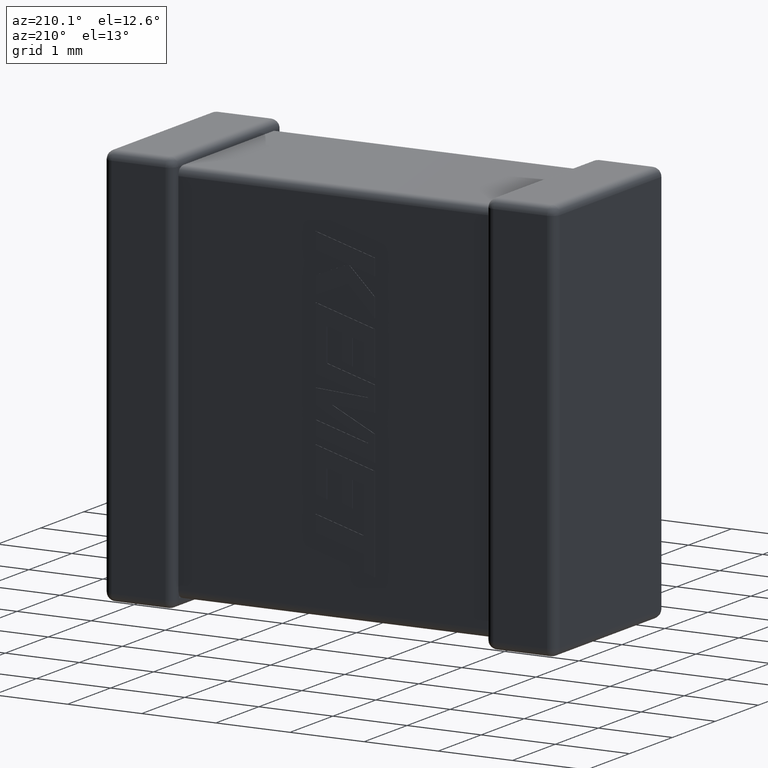
[diagram: clean part render]
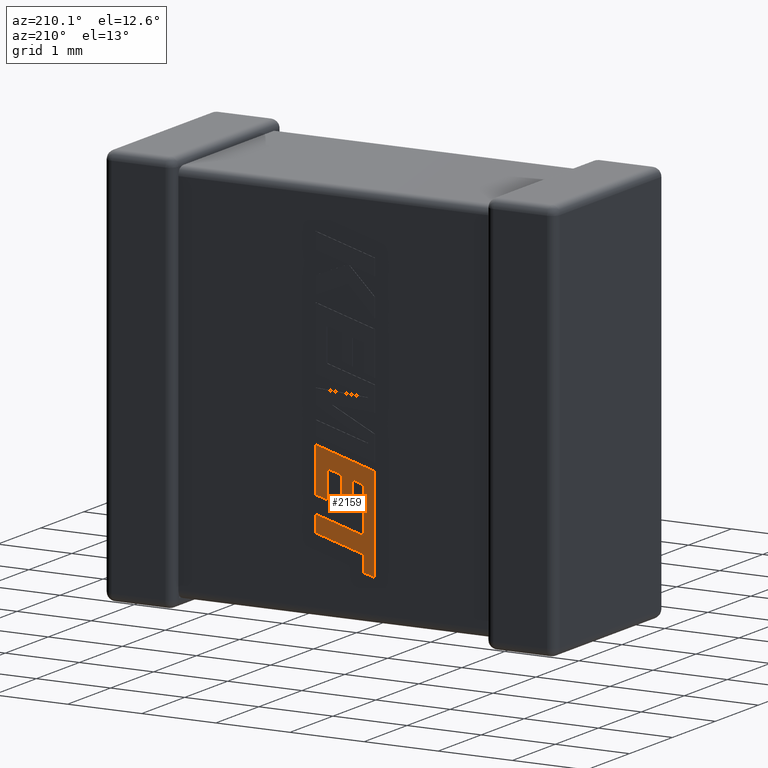
[diagram: same view with one face highlighted and labeled with its STEP entity id]
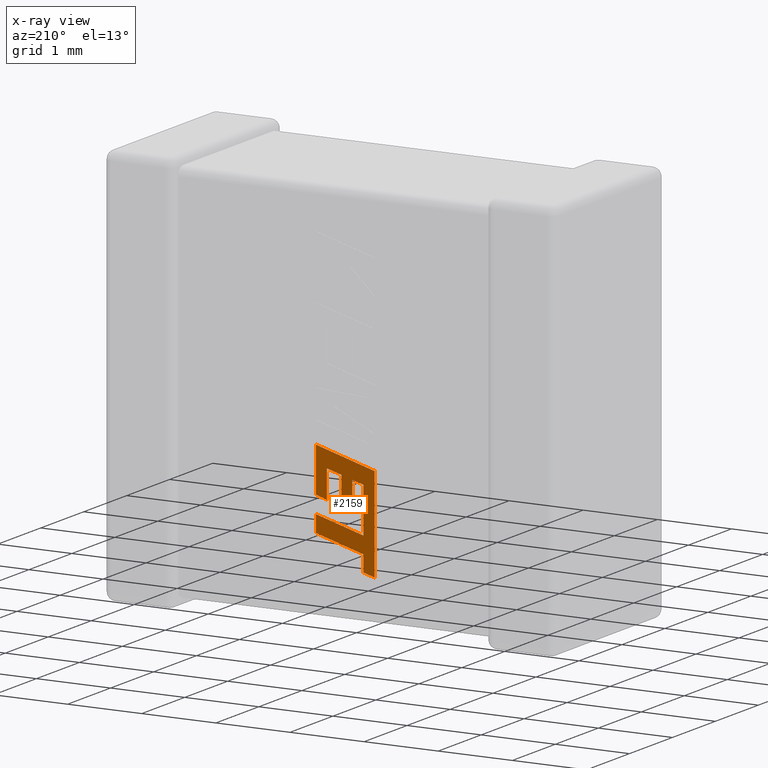
[diagram: x-ray of the same camera — body ghosted, the highlighted face saturated]
A machine part, auxiliary view. The second image highlights one B-rep face of the part: STEP entity #2159.
The next image is the same camera in x-ray: the body ghosted, the highlighted face saturated — about 0% of this face is hidden behind the body in this view.
In plain terms, the highlighted planar face has unit normal (0, 1, 0).
Its self-contained STEP definition (entity closure, byte-faithful):
#43 = LINE ( 'NONE', #97, #890 ) ;
#97 = CARTESIAN_POINT ( 'NONE',  ( 2.945662692118831139, 2.442679999999999740, -3.891737327869781105 ) ) ;
#121 = VERTEX_POINT ( 'NONE', #3624 ) ;
#183 = DIRECTION ( 'NONE',  ( 0.000000000000000000, 0.000000000000000000, 1.000000000000000000 ) ) ;
#184 = CARTESIAN_POINT ( 'NONE',  ( 3.294000000000012029, 2.442679999999999740, -4.283040501459447036 ) ) ;
#340 = LINE ( 'NONE', #2113, #3756 ) ;
#358 = CARTESIAN_POINT ( 'NONE',  ( 3.294000000000012029, 2.442679999999999740, -3.825613343307865843 ) ) ;
#378 = CARTESIAN_POINT ( 'NONE',  ( 2.500140458105373664, 2.442679999999999740, -3.454171021088409343 ) ) ;
#382 = VERTEX_POINT ( 'NONE', #866 ) ;
#391 = VECTOR ( 'NONE', #1495, 1000.000000000000000 ) ;
#474 = VERTEX_POINT ( 'NONE', #509 ) ;
#497 = EDGE_CURVE ( 'NONE', #4385, #3425, #1331, .T. ) ;
#509 = CARTESIAN_POINT ( 'NONE',  ( 2.500140458105373664, 2.442679999999999740, -3.454171021088409343 ) ) ;
#558 = CARTESIAN_POINT ( 'NONE',  ( 3.294000000000012029, 2.442679999999999740, -4.283040501459447036 ) ) ;
#583 = EDGE_CURVE ( 'NONE', #4150, #2136, #2470, .T. ) ;
#602 = LINE ( 'NONE', #1417, #3376 ) ;
#709 = ORIENTED_EDGE ( 'NONE', *, *, #1608, .T. ) ;
#749 = ORIENTED_EDGE ( 'NONE', *, *, #3665, .T. ) ;
#851 = VERTEX_POINT ( 'NONE', #2205 ) ;
#856 = VERTEX_POINT ( 'NONE', #4270 ) ;
#866 = CARTESIAN_POINT ( 'NONE',  ( 3.142938774847502614, 2.442679999999999740, -3.494785832608279463 ) ) ;
#880 = LINE ( 'NONE', #2728, #3205 ) ;
#890 = VECTOR ( 'NONE', #1217, 1000.000000000000114 ) ;
#925 = EDGE_CURVE ( 'NONE', #121, #4385, #4119, .T. ) ;
#936 = CARTESIAN_POINT ( 'NONE',  ( 3.142938774847502614, 2.442679999999999740, -3.494785832608279463 ) ) ;
#969 = VECTOR ( 'NONE', #2493, 1000.000000000000000 ) ;
#973 = ORIENTED_EDGE ( 'NONE', *, *, #925, .T. ) ;
#988 = CARTESIAN_POINT ( 'NONE',  ( 2.653419977112785322, 2.442679999999999740, -4.241073954201232787 ) ) ;
#1067 = VECTOR ( 'NONE', #3184, 1000.000000000000000 ) ;
#1127 = DIRECTION ( 'NONE',  ( -0.9601763114346048011, 0.000000000000000000, -0.2793947940814874298 ) ) ;
#1170 = EDGE_CURVE ( 'NONE', #3425, #3968, #2217, .T. ) ;
#1207 = CARTESIAN_POINT ( 'NONE',  ( 3.294000000000012029, 2.442679999999999740, -4.056900046700764761 ) ) ;
#1217 = DIRECTION ( 'NONE',  ( -0.9615323037684311291, 0.000000000000000000, -0.2746918797667186607 ) ) ;
#1221 = LINE ( 'NONE', #1989, #3622 ) ;
#1227 = VECTOR ( 'NONE', #1469, 1000.000000000000114 ) ;
#1254 = EDGE_LOOP ( 'NONE', ( #1912, #3774, #3305, #973, #1772, #3353, #1322, #749, #1351, #2172, #2256, #2253, #4330, #1354, #1787, #3816, #709 ) ) ;
#1263 = LINE ( 'NONE', #936, #2230 ) ;
#1307 = CARTESIAN_POINT ( 'NONE',  ( 2.653437232311451677, 2.442679999999999740, -4.684512721529441315 ) ) ;
#1322 = ORIENTED_EDGE ( 'NONE', *, *, #1627, .T. ) ;
#1331 = LINE ( 'NONE', #558, #1498 ) ;
#1351 = ORIENTED_EDGE ( 'NONE', *, *, #4094, .T. ) ;
#1354 = ORIENTED_EDGE ( 'NONE', *, *, #2790, .T. ) ;
#1417 = CARTESIAN_POINT ( 'NONE',  ( 2.798931846913854216, 2.442679999999999740, -3.933655598874454817 ) ) ;
#1469 = DIRECTION ( 'NONE',  ( 0.9610348236706638403, 0.000000000000000000, 0.2764273280489756290 ) ) ;
#1485 = PLANE ( 'NONE',  #3212 ) ;
#1495 = DIRECTION ( 'NONE',  ( 0.9610664548998939516, 0.000000000000000000, 0.2763173343569854667 ) ) ;
#1498 = VECTOR ( 'NONE', #3093, 1000.000000000000000 ) ;
#1527 = LINE ( 'NONE', #378, #1227 ) ;
#1550 = EDGE_CURVE ( 'NONE', #3914, #856, #43, .T. ) ;
#1570 = CARTESIAN_POINT ( 'NONE',  ( 2.945662692118831139, 2.442679999999999740, -3.891737327869781105 ) ) ;
#1608 = EDGE_CURVE ( 'NONE', #1985, #851, #1844, .T. ) ;
#1623 = CARTESIAN_POINT ( 'NONE',  ( 2.500140458105373664, 2.442679999999999740, -4.728567563735139423 ) ) ;
#1627 = EDGE_CURVE ( 'NONE', #3968, #3655, #880, .T. ) ;
#1660 = VECTOR ( 'NONE', #1953, 1000.000000000000000 ) ;
#1747 = LINE ( 'NONE', #3164, #1067 ) ;
#1772 = ORIENTED_EDGE ( 'NONE', *, *, #497, .T. ) ;
#1781 = DIRECTION ( 'NONE',  ( 0.004650693823668813724, 0.000000000000000000, -0.9999891854650021505 ) ) ;
#1787 = ORIENTED_EDGE ( 'NONE', *, *, #1550, .T. ) ;
#1844 = LINE ( 'NONE', #2280, #2677 ) ;
#1849 = CARTESIAN_POINT ( 'NONE',  ( 2.653419977114753969, 2.442679999999999740, -4.467161305080550093 ) ) ;
#1905 = EDGE_CURVE ( 'NONE', #851, #2046, #3632, .T. ) ;
#1912 = ORIENTED_EDGE ( 'NONE', *, *, #1905, .T. ) ;
#1953 = DIRECTION ( 'NONE',  ( 0.000000000000000000, 0.000000000000000000, -1.000000000000000000 ) ) ;
#1985 = VERTEX_POINT ( 'NONE', #3421 ) ;
#1989 = CARTESIAN_POINT ( 'NONE',  ( 2.500140458105373664, 2.442679999999999740, -4.728567563735139423 ) ) ;
#2041 = DIRECTION ( 'NONE',  ( 0.000000000000000000, 0.000000000000000000, 1.000000000000000000 ) ) ;
#2046 = VERTEX_POINT ( 'NONE', #3545 ) ;
#2091 = VECTOR ( 'NONE', #3603, 1000.000000000000114 ) ;
#2113 = CARTESIAN_POINT ( 'NONE',  ( 2.652297554216429987, 2.442679999999999740, -3.999731307183401530 ) ) ;
#2125 = CARTESIAN_POINT ( 'NONE',  ( 2.945662692118831139, 2.442679999999999740, -3.551104910063110243 ) ) ;
#2136 = VERTEX_POINT ( 'NONE', #2855 ) ;
#2159 = ADVANCED_FACE ( 'NONE', ( #3256 ), #1485, .T. ) ;
#2172 = ORIENTED_EDGE ( 'NONE', *, *, #2990, .T. ) ;
#2199 = LINE ( 'NONE', #2874, #3836 ) ;
#2205 = CARTESIAN_POINT ( 'NONE',  ( 2.651274097639754856, 2.442679999999999740, -3.635940770522039234 ) ) ;
#2217 = LINE ( 'NONE', #1849, #2226 ) ;
#2226 = VECTOR ( 'NONE', #4071, 1000.000000000000227 ) ;
#2230 = VECTOR ( 'NONE', #2680, 1000.000000000000114 ) ;
#2248 = LINE ( 'NONE', #3628, #3221 ) ;
#2253 = ORIENTED_EDGE ( 'NONE', *, *, #3243, .T. ) ;
#2254 = EDGE_CURVE ( 'NONE', #2046, #2649, #340, .T. ) ;
#2256 = ORIENTED_EDGE ( 'NONE', *, *, #583, .T. ) ;
#2280 = CARTESIAN_POINT ( 'NONE',  ( 2.798931846913854216, 2.442679999999999740, -3.592974904814171921 ) ) ;
#2298 = DIRECTION ( 'NONE',  ( -0.9610992334305258344, 0.000000000000000000, -0.2762033010288897916 ) ) ;
#2450 = CARTESIAN_POINT ( 'NONE',  ( -2.033509805128725922, 2.442679999999998852, 0.01221870379636692643 ) ) ;
#2470 = LINE ( 'NONE', #358, #969 ) ;
#2493 = DIRECTION ( 'NONE',  ( -0.9620200793798762140, 0.000000000000000000, -0.2729786930695083380 ) ) ;
#2568 = DIRECTION ( 'NONE',  ( 0.000000000000000000, 0.000000000000000000, -1.000000000000000000 ) ) ;
#2581 = CARTESIAN_POINT ( 'NONE',  ( 2.651274097639754856, 2.442679999999999740, -3.635940770522039234 ) ) ;
#2649 = VERTEX_POINT ( 'NONE', #988 ) ;
#2677 = VECTOR ( 'NONE', #1127, 1000.000000000000114 ) ;
#2680 = DIRECTION ( 'NONE',  ( -0.9615825319869173438, 0.000000000000000000, -0.2745159998572558879 ) ) ;
#2728 = CARTESIAN_POINT ( 'NONE',  ( 2.653437232311451677, 2.442679999999999740, -4.684512721529441315 ) ) ;
#2790 = EDGE_CURVE ( 'NONE', #3797, #3914, #2199, .T. ) ;
#2855 = CARTESIAN_POINT ( 'NONE',  ( 3.142938774847502614, 2.442679999999999740, -3.868477828883045255 ) ) ;
#2874 = CARTESIAN_POINT ( 'NONE',  ( 2.945662692118831139, 2.442679999999999740, -3.551104910063110243 ) ) ;
#2885 = DIRECTION ( 'NONE',  ( 0.000000000000000000, 0.000000000000000000, 1.000000000000000000 ) ) ;
#2898 = EDGE_CURVE ( 'NONE', #856, #1985, #602, .T. ) ;
#2990 = EDGE_CURVE ( 'NONE', #3584, #4150, #2248, .T. ) ;
#3093 = DIRECTION ( 'NONE',  ( -0.9610876102172833946, 0.000000000000000000, -0.2762437428917279281 ) ) ;
#3164 = CARTESIAN_POINT ( 'NONE',  ( 3.142938774847502614, 2.442679999999999740, -3.868477828883045255 ) ) ;
#3184 = DIRECTION ( 'NONE',  ( 0.000000000000000000, 0.000000000000000000, 1.000000000000000000 ) ) ;
#3205 = VECTOR ( 'NONE', #2298, 1000.000000000000114 ) ;
#3212 = AXIS2_PLACEMENT_3D ( 'NONE', #2450, #3882, #2041 ) ;
#3221 = VECTOR ( 'NONE', #4055, 1000.000000000000000 ) ;
#3240 = CARTESIAN_POINT ( 'NONE',  ( 2.653419977112785322, 2.442679999999999740, -4.241073954201232787 ) ) ;
#3243 = EDGE_CURVE ( 'NONE', #2136, #382, #1747, .T. ) ;
#3256 = FACE_OUTER_BOUND ( 'NONE', #1254, .T. ) ;
#3290 = LINE ( 'NONE', #3240, #391 ) ;
#3305 = ORIENTED_EDGE ( 'NONE', *, *, #4098, .T. ) ;
#3353 = ORIENTED_EDGE ( 'NONE', *, *, #1170, .T. ) ;
#3376 = VECTOR ( 'NONE', #2885, 1000.000000000000000 ) ;
#3421 = CARTESIAN_POINT ( 'NONE',  ( 2.798931846913854216, 2.442679999999999740, -3.592974904814171921 ) ) ;
#3425 = VERTEX_POINT ( 'NONE', #3486 ) ;
#3486 = CARTESIAN_POINT ( 'NONE',  ( 2.653419977114753969, 2.442679999999999740, -4.467161305080550093 ) ) ;
#3545 = CARTESIAN_POINT ( 'NONE',  ( 2.652297554216429987, 2.442679999999999740, -3.999731307183401530 ) ) ;
#3584 = VERTEX_POINT ( 'NONE', #4024 ) ;
#3603 = DIRECTION ( 'NONE',  ( 0.002813301676014988168, 0.000000000000000000, -0.9999960426590095430 ) ) ;
#3622 = VECTOR ( 'NONE', #183, 1000.000000000000000 ) ;
#3624 = CARTESIAN_POINT ( 'NONE',  ( 3.294000000000012029, 2.442679999999999740, -4.056900046700764761 ) ) ;
#3628 = CARTESIAN_POINT ( 'NONE',  ( 3.294000000000012029, 2.442679999999999740, -3.225829168527901913 ) ) ;
#3632 = LINE ( 'NONE', #2581, #2091 ) ;
#3655 = VERTEX_POINT ( 'NONE', #1623 ) ;
#3665 = EDGE_CURVE ( 'NONE', #3655, #474, #1221, .T. ) ;
#3756 = VECTOR ( 'NONE', #1781, 1000.000000000000227 ) ;
#3774 = ORIENTED_EDGE ( 'NONE', *, *, #2254, .T. ) ;
#3797 = VERTEX_POINT ( 'NONE', #2125 ) ;
#3816 = ORIENTED_EDGE ( 'NONE', *, *, #2898, .T. ) ;
#3836 = VECTOR ( 'NONE', #2568, 1000.000000000000000 ) ;
#3882 = DIRECTION ( 'NONE',  ( 0.000000000000000000, 1.000000000000000000, 0.000000000000000000 ) ) ;
#3914 = VERTEX_POINT ( 'NONE', #1570 ) ;
#3968 = VERTEX_POINT ( 'NONE', #1307 ) ;
#4024 = CARTESIAN_POINT ( 'NONE',  ( 3.294000000000012029, 2.442679999999999740, -3.225829168527901913 ) ) ;
#4055 = DIRECTION ( 'NONE',  ( 0.000000000000000000, 0.000000000000000000, -1.000000000000000000 ) ) ;
#4071 = DIRECTION ( 'NONE',  ( 7.938847109757215918E-05, 0.000000000000000000, -0.9999999968487351953 ) ) ;
#4094 = EDGE_CURVE ( 'NONE', #474, #3584, #1527, .T. ) ;
#4098 = EDGE_CURVE ( 'NONE', #2649, #121, #3290, .T. ) ;
#4119 = LINE ( 'NONE', #1207, #1660 ) ;
#4150 = VERTEX_POINT ( 'NONE', #4172 ) ;
#4172 = CARTESIAN_POINT ( 'NONE',  ( 3.294000000000012029, 2.442679999999999740, -3.825613343307865843 ) ) ;
#4270 = CARTESIAN_POINT ( 'NONE',  ( 2.798931846913854216, 2.442679999999999740, -3.933655598874454817 ) ) ;
#4330 = ORIENTED_EDGE ( 'NONE', *, *, #4438, .T. ) ;
#4385 = VERTEX_POINT ( 'NONE', #184 ) ;
#4438 = EDGE_CURVE ( 'NONE', #382, #3797, #1263, .T. ) ;